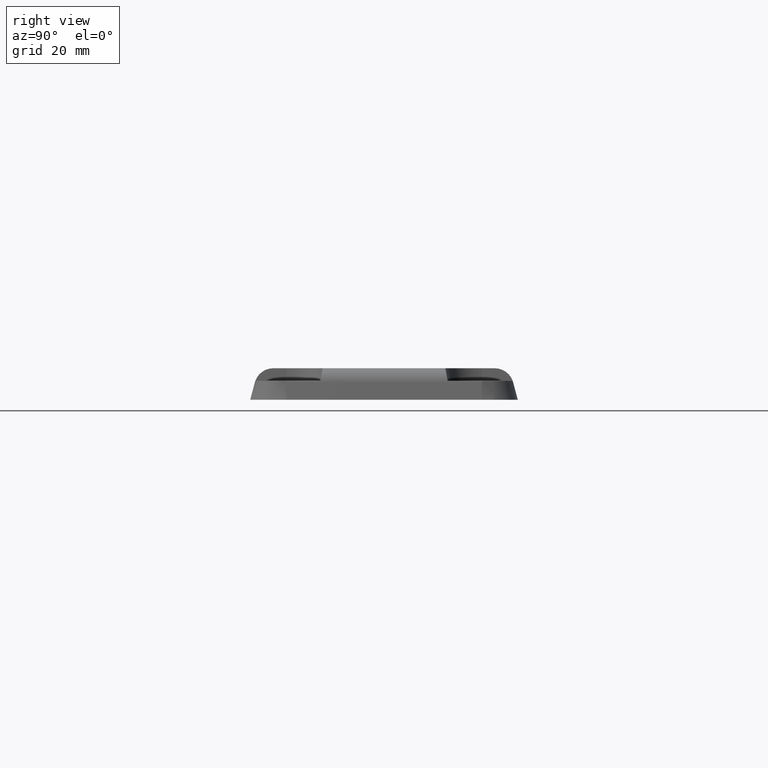
[diagram: clean part render]
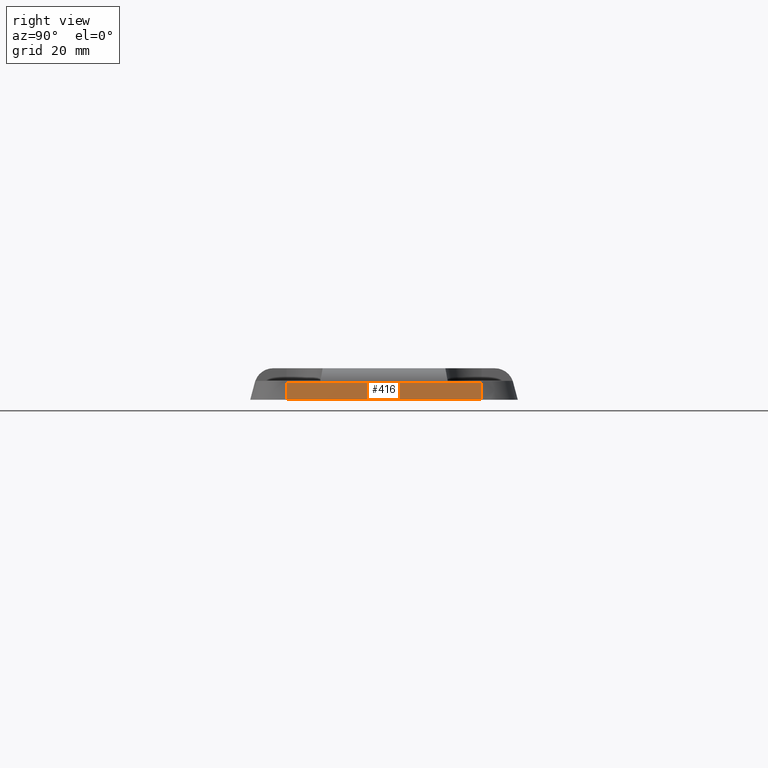
[diagram: same view with one face highlighted and labeled with its STEP entity id]
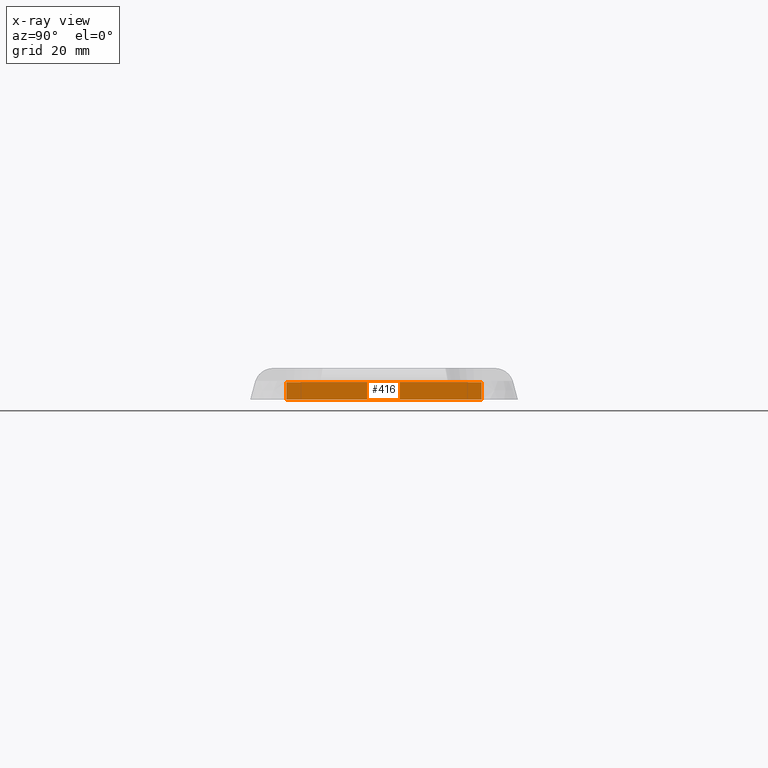
[diagram: x-ray of the same camera — body ghosted, the highlighted face saturated]
A machine part, right view. The second image highlights one B-rep face of the part: STEP entity #416.
The next image is the same camera in x-ray: the body ghosted, the highlighted face saturated — about 0% of this face is hidden behind the body in this view.
In plain terms, the highlighted planar face has unit normal (0.9659, 0, 0.2588).
Its self-contained STEP definition (entity closure, byte-faithful):
#154 = FACE_OUTER_BOUND ( 'NONE', #3027, .T. ) ;
#237 = CARTESIAN_POINT ( 'NONE',  ( 108.0000000000000300, -30.99999999999996800, 0.0000000000000000000 ) ) ;
#416 = ADVANCED_FACE ( 'NONE', ( #154 ), #3062, .T. ) ;
#619 = ORIENTED_EDGE ( 'NONE', *, *, #1690, .T. ) ;
#1011 = VECTOR ( 'NONE', #1092, 1000.000000000000000 ) ;
#1092 = DIRECTION ( 'NONE',  ( 2.238352872228139600E-016, -1.000000000000000000, -6.436170204226582400E-033 ) ) ;
#1501 = DIRECTION ( 'NONE',  ( 0.2588190451025213500, 0.0000000000000000000, -0.9659258262890680900 ) ) ;
#1545 = CARTESIAN_POINT ( 'NONE',  ( 107.9999999999999900, -30.99999999999996400, 0.0000000000000000000 ) ) ;
#1690 = EDGE_CURVE ( 'NONE', #3293, #2813, #4574, .T. ) ;
#1815 = LINE ( 'NONE', #3142, #3509 ) ;
#1873 = CARTESIAN_POINT ( 'NONE',  ( 107.9999999999999900, -30.99999999999996400, 0.0000000000000000000 ) ) ;
#1993 = DIRECTION ( 'NONE',  ( 0.2588190451025213500, 7.808338670769451900E-017, -0.9659258262890680900 ) ) ;
#2035 = CARTESIAN_POINT ( 'NONE',  ( 107.9999999999999900, -30.99999999999996800, -9.711114224141915900E-015 ) ) ;
#2040 = EDGE_CURVE ( 'NONE', #4176, #3293, #4877, .T. ) ;
#2054 = DIRECTION ( 'NONE',  ( 0.2588190451025213500, 5.793283529925730000E-017, -0.9659258262890680900 ) ) ;
#2110 = VECTOR ( 'NONE', #2054, 1000.000000000000000 ) ;
#2158 = ORIENTED_EDGE ( 'NONE', *, *, #2040, .T. ) ;
#2254 = DIRECTION ( 'NONE',  ( -2.238352872228139600E-016, 1.000000000000000000, 0.0000000000000000000 ) ) ;
#2269 = CARTESIAN_POINT ( 'NONE',  ( 106.5121011055494300, 30.99999999999999300, 5.552914270615132400 ) ) ;
#2291 = DIRECTION ( 'NONE',  ( 0.9659258262890680900, 2.162082847633474500E-016, 0.2588190451025213500 ) ) ;
#2769 = CARTESIAN_POINT ( 'NONE',  ( 107.9999999999999700, 30.99999999999999300, 0.0000000000000000000 ) ) ;
#2813 = VERTEX_POINT ( 'NONE', #237 ) ;
#3027 = EDGE_LOOP ( 'NONE', ( #3350, #2158, #619, #4286 ) ) ;
#3057 = VERTEX_POINT ( 'NONE', #2769 ) ;
#3062 = PLANE ( 'NONE',  #4468 ) ;
#3142 = CARTESIAN_POINT ( 'NONE',  ( 108.0000000000000100, 30.99999999999999300, 1.084202172485506800E-014 ) ) ;
#3293 = VERTEX_POINT ( 'NONE', #3463 ) ;
#3350 = ORIENTED_EDGE ( 'NONE', *, *, #3378, .F. ) ;
#3378 = EDGE_CURVE ( 'NONE', #4176, #3057, #1815, .T. ) ;
#3427 = CARTESIAN_POINT ( 'NONE',  ( 106.5121011055494100, -30.99999999999996400, 5.552914270615121800 ) ) ;
#3463 = CARTESIAN_POINT ( 'NONE',  ( 106.5121011055494100, -30.99999999999996800, 5.552914270615120900 ) ) ;
#3509 = VECTOR ( 'NONE', #1993, 1000.000000000000000 ) ;
#3758 = VECTOR ( 'NONE', #2254, 1000.000000000000000 ) ;
#3815 = EDGE_CURVE ( 'NONE', #2813, #3057, #4179, .T. ) ;
#4176 = VERTEX_POINT ( 'NONE', #2269 ) ;
#4179 = LINE ( 'NONE', #1873, #3758 ) ;
#4286 = ORIENTED_EDGE ( 'NONE', *, *, #3815, .T. ) ;
#4468 = AXIS2_PLACEMENT_3D ( 'NONE', #1545, #2291, #1501 ) ;
#4574 = LINE ( 'NONE', #2035, #2110 ) ;
#4877 = LINE ( 'NONE', #3427, #1011 ) ;